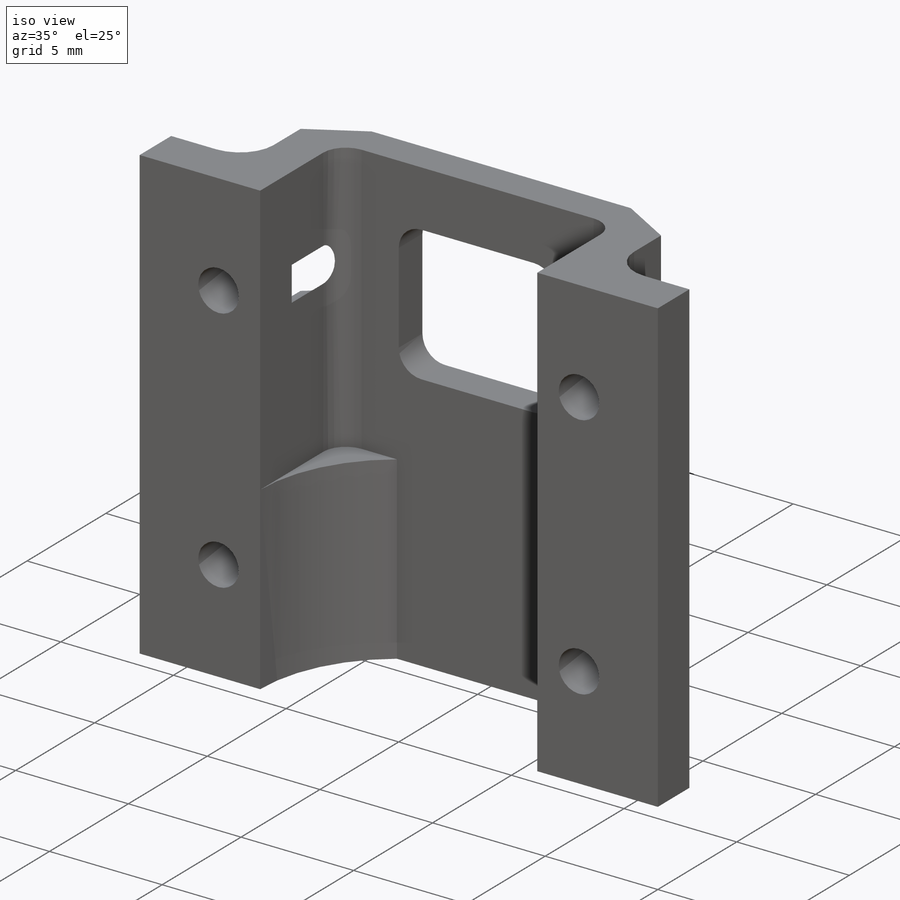
[diagram: iso view]
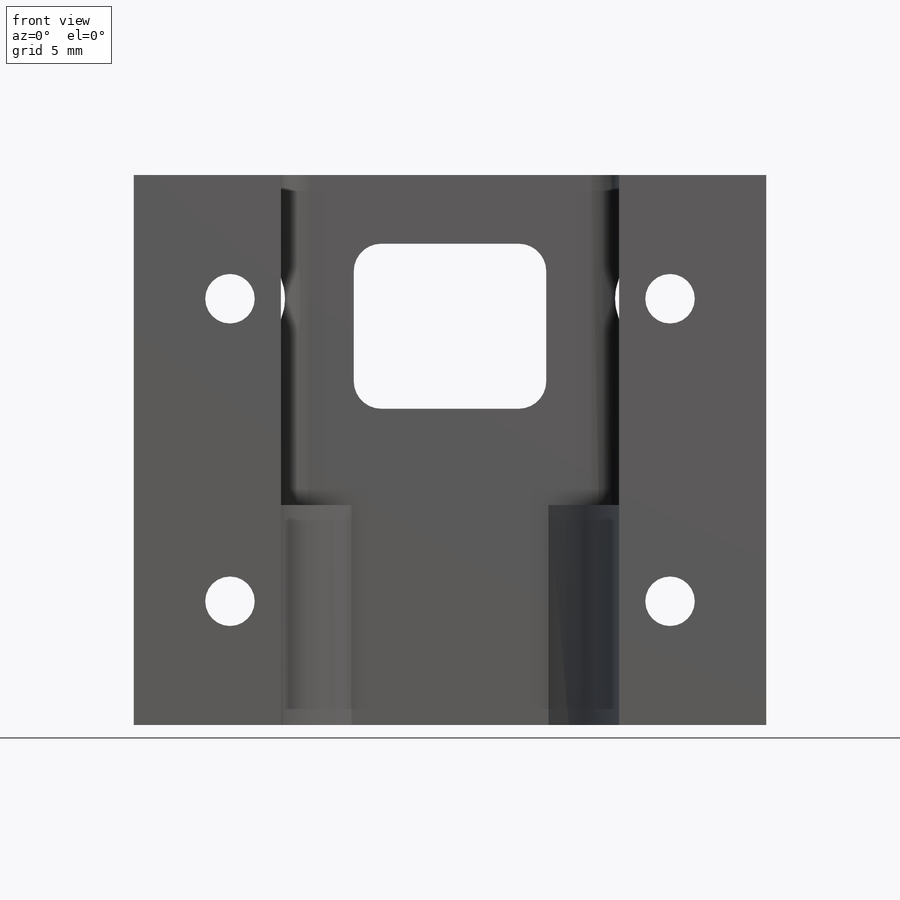
[diagram: front view]
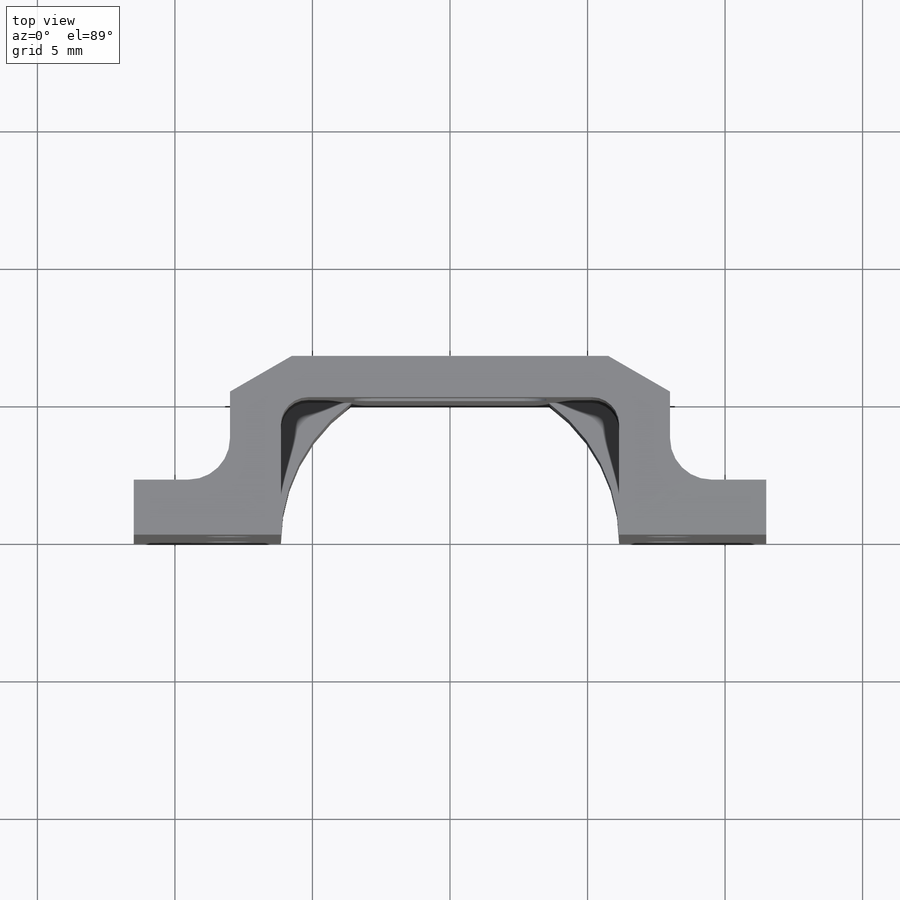
[diagram: top view]
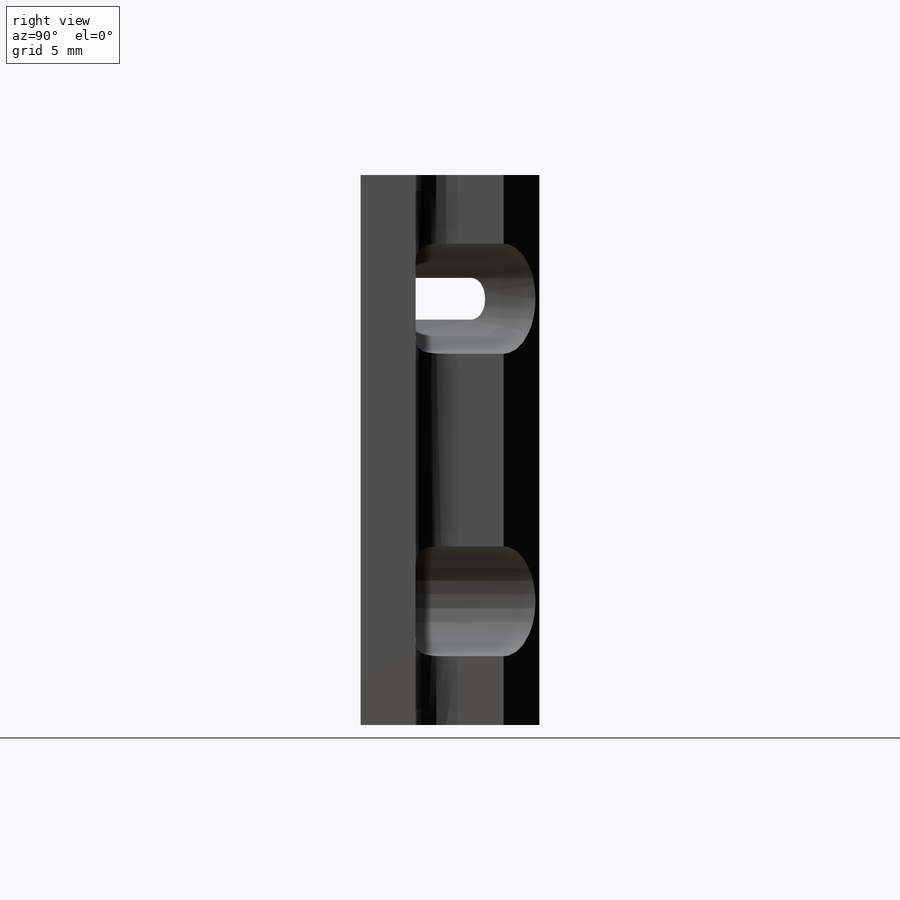
[diagram: right view]
SOLIDWORKS PART (.sldprt)
format: sldprt  version: not decoded by parser v0  size: 349,696 bytes
history: native  units: mm
features: material x6, cut_extrude x5, fillet x2, plane x1, sketch x1, extrude x1 (+12 scaffold rows collapsed)
feature tree (28):
  scaffold x12  (default folders/planes/origin — collapsed)
  material  "材质 <未指定>"
  material  "草图2"
  material  "草图6"
  material  "草图3"
  material  "草图4"
  material  "草图5"
  plane  "前视基准面"
  sketch  "草图1"  dims[c1.D1=12.3mm c1.D2=23.0mm c1.D3=5.0mm c1.D4=2.0mm c1.D5=1.7mm c1.D6=3.65mm c1.D7=1.5mm c1.D8=16.0mm c2.D5=3.5mm]
  extrude  "凸台-拉伸1"  Depth=20mm
  cut_extrude  "切除-拉伸1"  Depth=8mm
  fillet  "圆角1"  Radius=1mm
  fillet  "圆角2"  Radius=1.5mm
  cut_extrude  "切除-拉伸5"  [1 undecoded]
  cut_extrude  "切除-拉伸2"  Depth=8mm
  cut_extrude  "切除-拉伸3"  Depth=8mm
  cut_extrude  "切除-拉伸4"  Depth=8mm
decode coverage: 8 of 9 modeling features carry decoded parameters
note: 1 parameter value undecoded
note: suppression state not decoded; provenance and decode notes live in map.json
